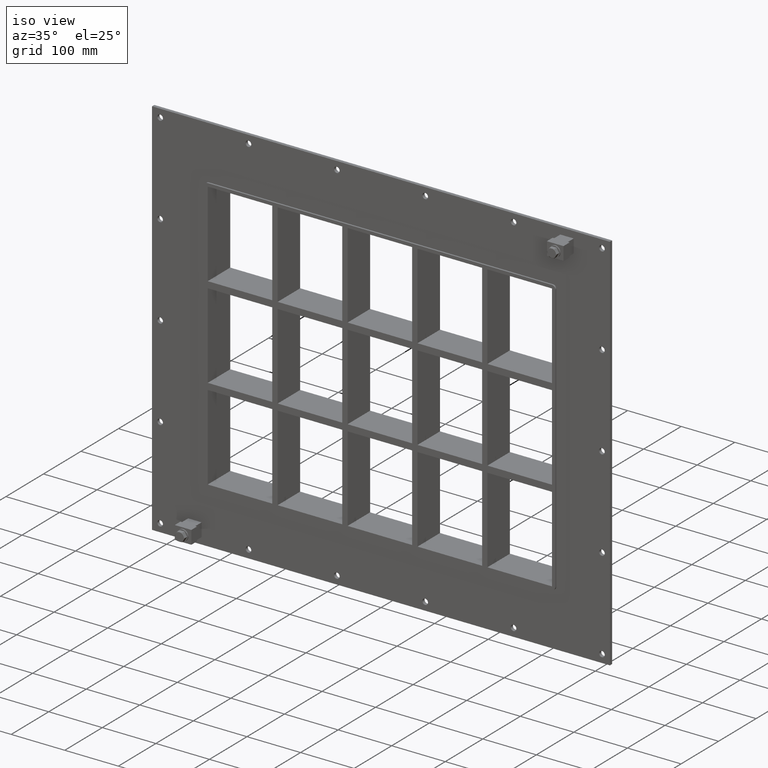
[diagram: clean part render]
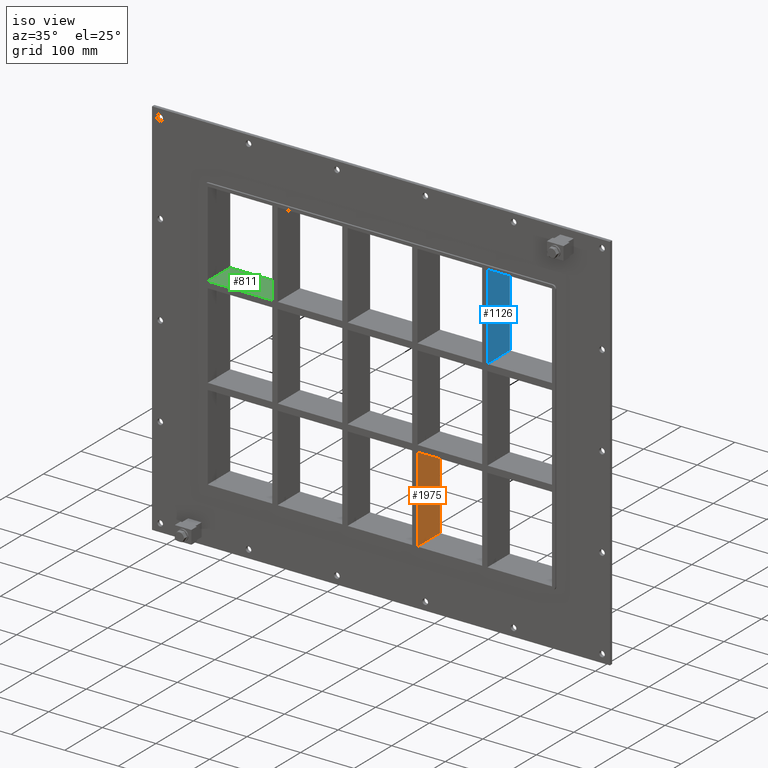
[diagram: same view with three faces highlighted in distinct colors, each labeled with its STEP entity id]
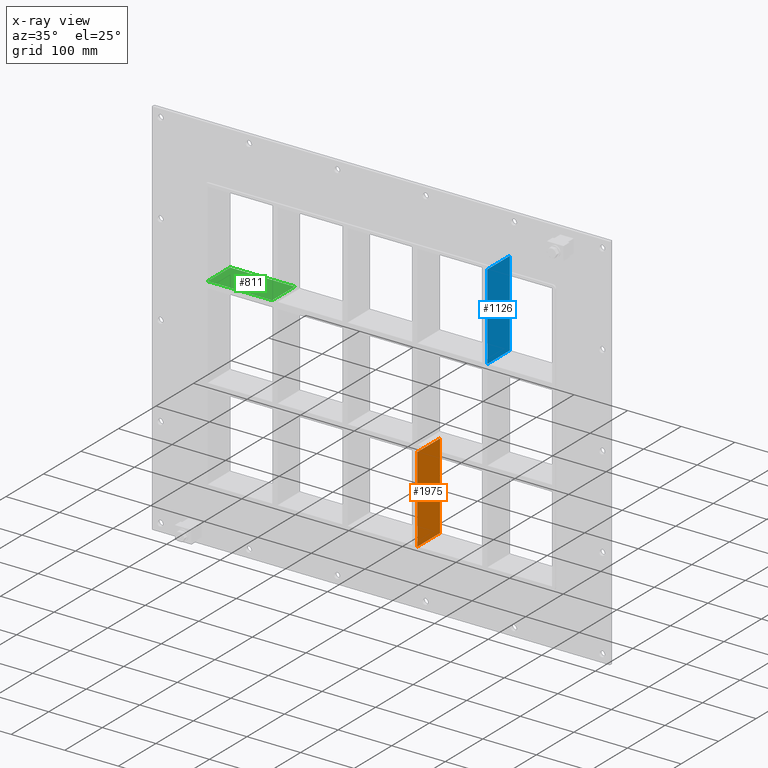
[diagram: x-ray of the same camera — body ghosted, the three highlighted faces saturated]
A machine part, iso view with three faces highlighted in distinct colors.
The next image is the same camera in x-ray (body ghosted, the three faces saturated) — at least one of them is partly hidden behind the body in this view.
Their STEP definitions:

[orange] entity #1975 — the highlighted planar face has unit normal (1, 0, 0).
#1686=CARTESIAN_POINT('',(70.249999999992738,57.0,-91.750000000010843));
#1687=VERTEX_POINT('',#1686);
#1694=CARTESIAN_POINT('',(70.249999999992738,57.0,-251.24999999998175));
#1695=VERTEX_POINT('',#1694);
#1696=CARTESIAN_POINT('',(70.249999999992738,57.0,-91.750000000010857));
#1697=DIRECTION('',(0.0,0.0,-1.0));
#1698=VECTOR('',#1697,159.4999999999709);
#1699=LINE('',#1696,#1698);
#1700=EDGE_CURVE('',#1687,#1695,#1699,.T.);
#1945=CARTESIAN_POINT('',(70.249999999992738,-3.0,251.25));
#1946=DIRECTION('',(1.0,0.0,0.0));
#1947=DIRECTION('',(0.0,0.0,-1.0));
#1948=AXIS2_PLACEMENT_3D('',#1945,#1946,#1947);
#1949=PLANE('',#1948);
#1950=CARTESIAN_POINT('',(70.249999999992738,-3.0,-91.750000000010843));
#1951=VERTEX_POINT('',#1950);
#1952=CARTESIAN_POINT('',(70.249999999992738,-3.0,-91.750000000010829));
#1953=DIRECTION('',(0.0,1.0,0.0));
#1954=VECTOR('',#1953,60.0);
#1955=LINE('',#1952,#1954);
#1956=EDGE_CURVE('',#1951,#1687,#1955,.T.);
#1957=ORIENTED_EDGE('',*,*,#1956,.F.);
#1958=CARTESIAN_POINT('',(70.249999999992738,-3.0,-251.24999999998175));
#1959=VERTEX_POINT('',#1958);
#1960=CARTESIAN_POINT('',(70.249999999992738,-3.0,-91.750000000010857));
#1961=DIRECTION('',(0.0,0.0,-1.0));
#1962=VECTOR('',#1961,159.4999999999709);
#1963=LINE('',#1960,#1962);
#1964=EDGE_CURVE('',#1951,#1959,#1963,.T.);
#1965=ORIENTED_EDGE('',*,*,#1964,.T.);
#1966=CARTESIAN_POINT('',(70.249999999992738,57.000000000000007,-251.25));
#1967=DIRECTION('',(0.0,-1.0,0.0));
#1968=VECTOR('',#1967,60.000000000000007);
#1969=LINE('',#1966,#1968);
#1970=EDGE_CURVE('',#1695,#1959,#1969,.T.);
#1971=ORIENTED_EDGE('',*,*,#1970,.F.);
#1972=ORIENTED_EDGE('',*,*,#1700,.F.);
#1973=EDGE_LOOP('',(#1957,#1965,#1971,#1972));
#1974=FACE_OUTER_BOUND('',#1973,.T.);
#1975=ADVANCED_FACE('',(#1974),#1949,.T.);

[blue] entity #1126 — the highlighted planar face has unit normal (1, 0, 0).
#817=CARTESIAN_POINT('',(200.74999999999278,-3.0,91.750000000000938));
#818=VERTEX_POINT('',#817);
#819=CARTESIAN_POINT('',(200.74999999999278,57.0,91.750000000000938));
#820=VERTEX_POINT('',#819);
#821=CARTESIAN_POINT('',(200.74999999999278,-3.0,91.750000000000952));
#822=DIRECTION('',(0.0,1.0,0.0));
#823=VECTOR('',#822,60.0);
#824=LINE('',#821,#823);
#825=EDGE_CURVE('',#818,#820,#824,.T.);
#1096=CARTESIAN_POINT('',(200.74999999999278,-3.0,251.25));
#1097=DIRECTION('',(1.0,0.0,0.0));
#1098=DIRECTION('',(0.0,0.0,-1.0));
#1099=AXIS2_PLACEMENT_3D('',#1096,#1097,#1098);
#1100=PLANE('',#1099);
#1101=ORIENTED_EDGE('',*,*,#825,.T.);
#1102=CARTESIAN_POINT('',(200.74999999999278,57.0,251.25));
#1103=VERTEX_POINT('',#1102);
#1104=CARTESIAN_POINT('',(200.74999999999278,57.0,251.25));
#1105=DIRECTION('',(0.0,0.0,-1.0));
#1106=VECTOR('',#1105,159.49999999999906);
#1107=LINE('',#1104,#1106);
#1108=EDGE_CURVE('',#1103,#820,#1107,.T.);
#1109=ORIENTED_EDGE('',*,*,#1108,.F.);
#1110=CARTESIAN_POINT('',(200.74999999999278,-3.0,251.25));
#1111=VERTEX_POINT('',#1110);
#1112=CARTESIAN_POINT('',(200.74999999999278,-3.0,251.25000000000003));
#1113=DIRECTION('',(0.0,1.0,0.0));
#1114=VECTOR('',#1113,60.000000000000007);
#1115=LINE('',#1112,#1114);
#1116=EDGE_CURVE('',#1111,#1103,#1115,.T.);
#1117=ORIENTED_EDGE('',*,*,#1116,.F.);
#1118=CARTESIAN_POINT('',(200.74999999999278,-3.0,251.25));
#1119=DIRECTION('',(0.0,0.0,-1.0));
#1120=VECTOR('',#1119,159.49999999999906);
#1121=LINE('',#1118,#1120);
#1122=EDGE_CURVE('',#1111,#818,#1121,.T.);
#1123=ORIENTED_EDGE('',*,*,#1122,.T.);
#1124=EDGE_LOOP('',(#1101,#1109,#1117,#1123));
#1125=FACE_OUTER_BOUND('',#1124,.T.);
#1126=ADVANCED_FACE('',(#1125),#1100,.T.);

[green] entity #811 — the highlighted planar face has unit normal (0, 0, 1).
#772=CARTESIAN_POINT('',(-321.24999999999727,-3.0,91.750000000000938));
#773=DIRECTION('',(0.0,0.0,1.0));
#774=DIRECTION('',(1.0,0.0,0.0));
#775=AXIS2_PLACEMENT_3D('',#772,#773,#774);
#776=PLANE('',#775);
#777=CARTESIAN_POINT('',(-200.74999999999901,57.0,91.750000000000966));
#778=VERTEX_POINT('',#777);
#779=CARTESIAN_POINT('',(-200.74999999999901,-3.0,91.750000000000966));
#780=VERTEX_POINT('',#779);
#781=CARTESIAN_POINT('',(-200.74999999999901,57.0,91.750000000000952));
#782=DIRECTION('',(0.0,-1.0,0.0));
#783=VECTOR('',#782,60.0);
#784=LINE('',#781,#783);
#785=EDGE_CURVE('',#778,#780,#784,.T.);
#786=ORIENTED_EDGE('',*,*,#785,.F.);
#787=CARTESIAN_POINT('',(-321.24999999999727,57.0,91.750000000000938));
#788=VERTEX_POINT('',#787);
#789=CARTESIAN_POINT('',(-321.24999999999727,57.0,91.750000000000938));
#790=DIRECTION('',(1.0,0.0,0.0));
#791=VECTOR('',#790,120.49999999999829);
#792=LINE('',#789,#791);
#793=EDGE_CURVE('',#788,#778,#792,.T.);
#794=ORIENTED_EDGE('',*,*,#793,.F.);
#795=CARTESIAN_POINT('',(-321.24999999999727,-3.0,91.750000000000938));
#796=VERTEX_POINT('',#795);
#797=CARTESIAN_POINT('',(-321.25,-3.0,91.750000000000952));
#798=DIRECTION('',(0.0,1.0,0.0));
#799=VECTOR('',#798,60.000000000000007);
#800=LINE('',#797,#799);
#801=EDGE_CURVE('',#796,#788,#800,.T.);
#802=ORIENTED_EDGE('',*,*,#801,.F.);
#803=CARTESIAN_POINT('',(-321.24999999999727,-3.0,91.750000000000938));
#804=DIRECTION('',(1.0,0.0,0.0));
#805=VECTOR('',#804,120.49999999999829);
#806=LINE('',#803,#805);
#807=EDGE_CURVE('',#796,#780,#806,.T.);
#808=ORIENTED_EDGE('',*,*,#807,.T.);
#809=EDGE_LOOP('',(#786,#794,#802,#808));
#810=FACE_OUTER_BOUND('',#809,.T.);
#811=ADVANCED_FACE('',(#810),#776,.T.);